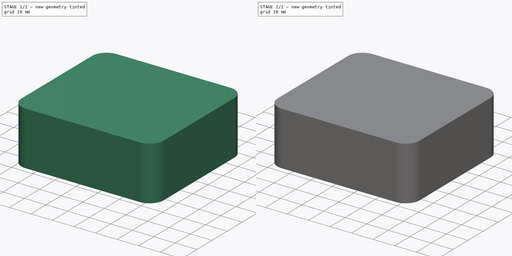
[diagram: build sequence overview — one tinted view per stage of 2, left to right]
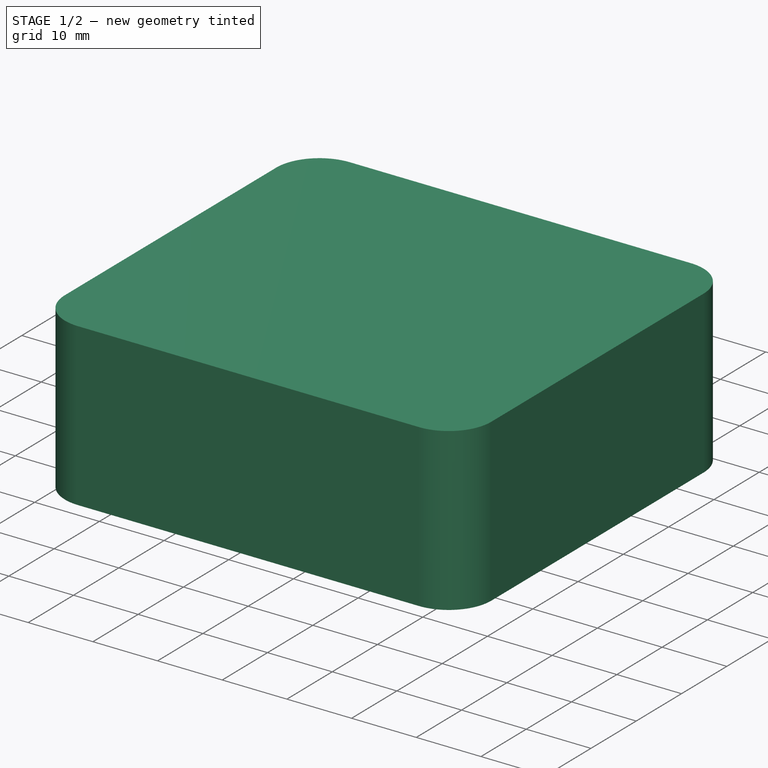
[diagram: stage 1 of 2 — iso view after this stage's code; geometry added in this stage tinted green]
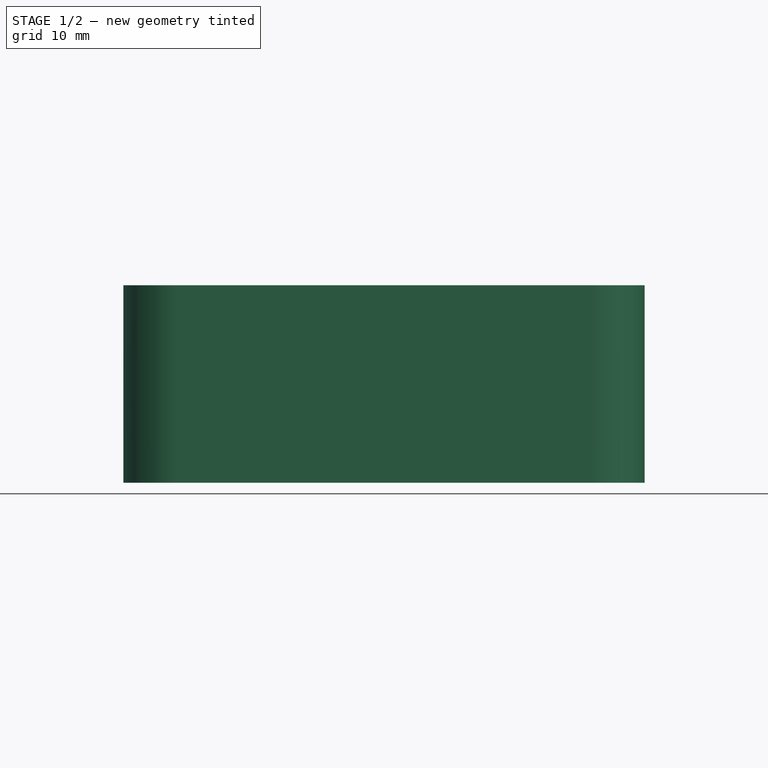
[diagram: stage 1 of 2 — front view after this stage's code; geometry added in this stage tinted green]
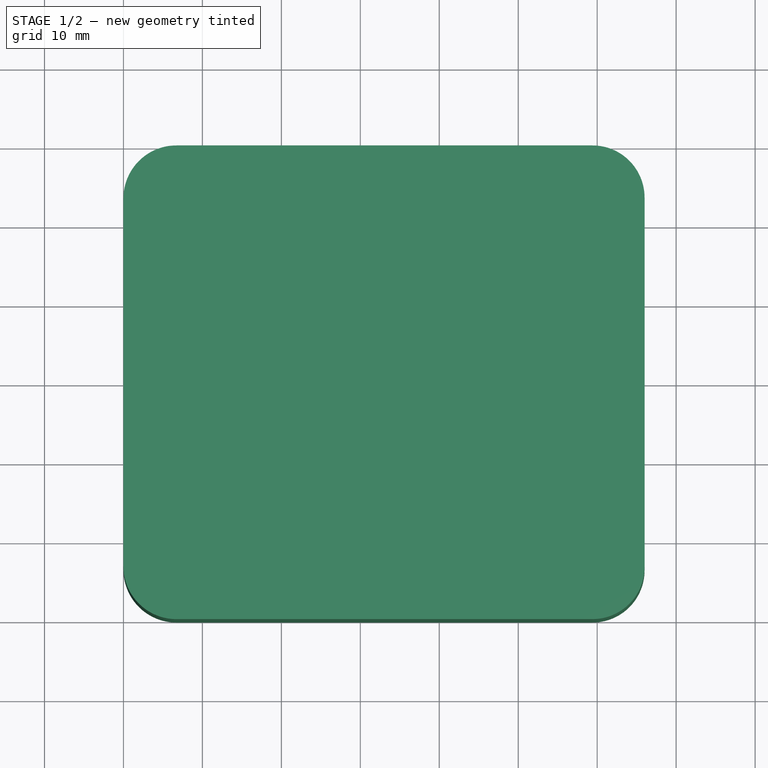
[diagram: stage 1 of 2 — top view after this stage's code; geometry added in this stage tinted green]
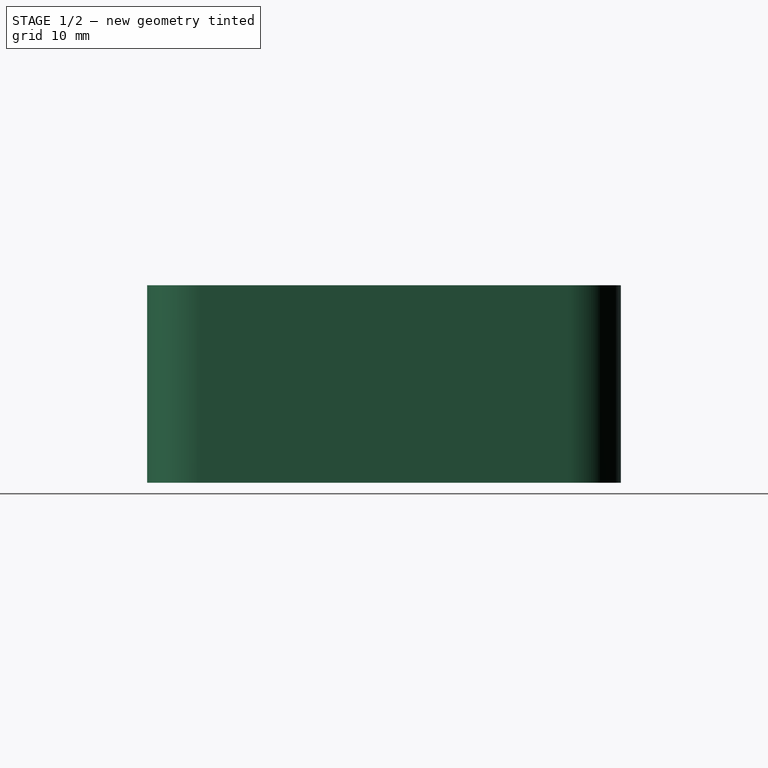
[diagram: stage 1 of 2 — right view after this stage's code; geometry added in this stage tinted green]
FCSTD DOCUMENT  (FreeCAD 0.21R33771 (Git))
Label: Back_unit
License: All rights reserved
LicenseURL: https://en.wikipedia.org/wiki/All_rights_reserved
objects: Sketcher::SketchObject×1, Part::Extrusion×1, Part::Thickness×1
note: 3 computed .brp shape members not serialized (recipe doc carries the construction recipe); baked Part::Feature solids carry a one-line shape summary decoded from their .brp

FEATURE [Sketcher::SketchObject] Sketch
  FullyConstrained = true
  sketch-geometry (8):
    g0: LineSegment StartX=6.7 StartY=0 StartZ=0 EndX=59.4 EndY=0 EndZ=0
    g1: LineSegment StartX=66 StartY=6.6 StartZ=0 EndX=66 EndY=53.4 EndZ=0
    g2: LineSegment StartX=59.4 StartY=60 StartZ=0 EndX=6.7 EndY=60 EndZ=0
    g3: LineSegment StartX=0 StartY=53.3 StartZ=0 EndX=0 EndY=6.7 EndZ=0
    g4: ArcOfCircle CenterX=6.7 CenterY=6.7 CenterZ=0 NormalX=0 NormalY=0 NormalZ=1 AngleXU=0 Radius=6.7 StartAngle=3.14159 EndAngle=4.71239
    g5: ArcOfCircle CenterX=6.7 CenterY=53.3 CenterZ=0 NormalX=0 NormalY=0 NormalZ=1 AngleXU=0 Radius=6.7 StartAngle=1.5708 EndAngle=3.14159
    g6: ArcOfCircle CenterX=59.4 CenterY=53.4 CenterZ=0 NormalX=0 NormalY=0 NormalZ=1 AngleXU=0 Radius=6.6 StartAngle=4.96466e-11 EndAngle=1.5708
    g7: ArcOfCircle CenterX=59.4 CenterY=6.6 CenterZ=0 NormalX=0 NormalY=0 NormalZ=1 AngleXU=0 Radius=6.6 StartAngle=4.71239 EndAngle=6.28319
  constraints (20):
    c: Horizontal(g0)
    c: Horizontal(g2)
    c: Vertical(g1)
    c: Vertical(g3)
    c: Tangent(g0,g4) = -1.5708
    c: Tangent(g3,g4) = -1.5708
    c: Tangent(g2,g5) = -1.5708
    c: Tangent(g3,g5) = -1.5708
    c: Tangent(g1,g6) = -1.5708
    c: Tangent(g2,g6) = -1.5708
    c: Tangent(g0,g7) = -1.5708
    c: Tangent(g1,g7) = -1.5708
    c: Radius(g5) = 6.7
    c: PointOnObject(g3,g-2)
    c: PointOnObject(g0,g-1)
    c: Radius(g4) = 6.7
    c: DistanceX(g3,g1) = 66
    c: DistanceY(g0,g2) = 60
    c: Equal(g6,g7)
    c: Radius(g6) = 6.6
FEATURE [Part::Extrusion] Extrude
  Base = -> Sketch
  Dir = (0,0,1)
  DirMode = 2
  FaceMakerClass = Part::FaceMakerBullseye
  LengthFwd = 25
  LengthRev = 0
  Solid = true
  Symmetric = false
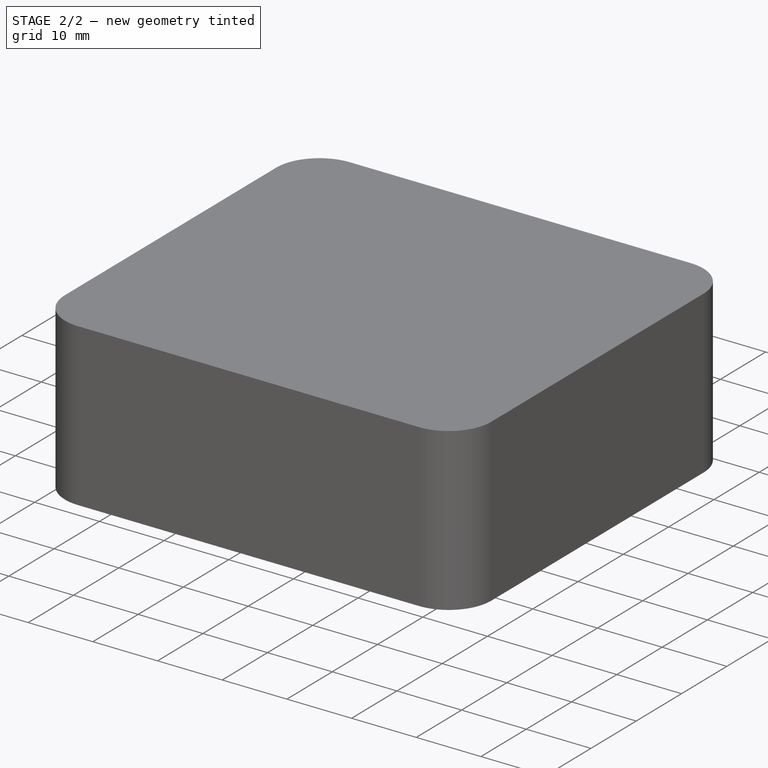
[diagram: stage 2 of 2 — iso view after this stage's code; geometry added in this stage tinted green]
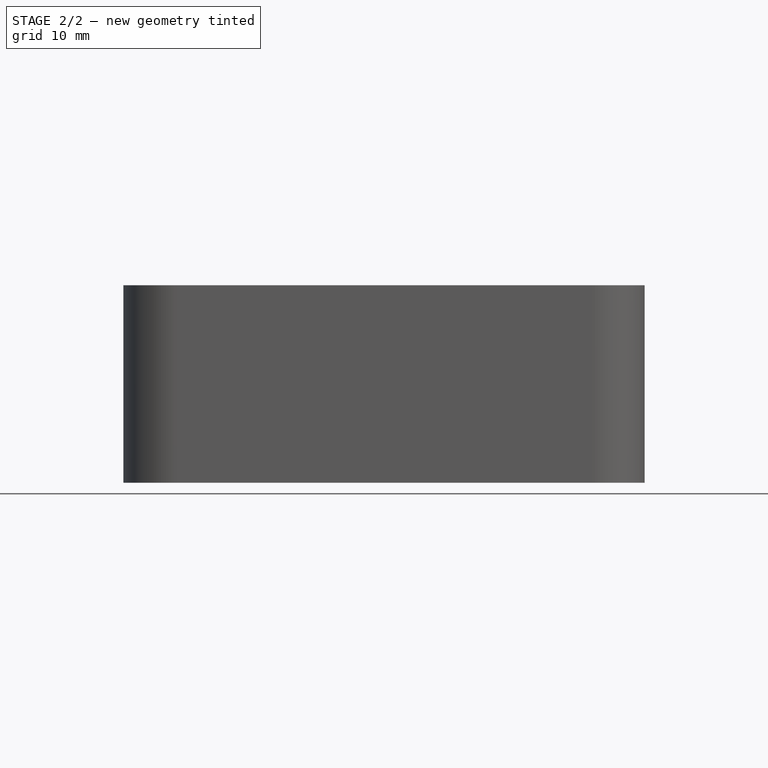
[diagram: stage 2 of 2 — front view after this stage's code; geometry added in this stage tinted green]
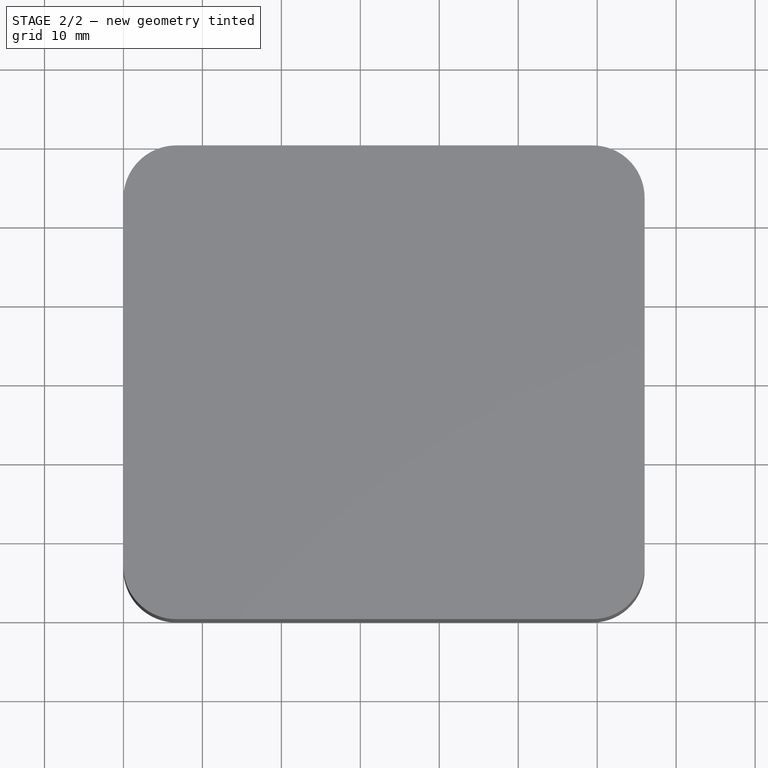
[diagram: stage 2 of 2 — top view after this stage's code; geometry added in this stage tinted green]
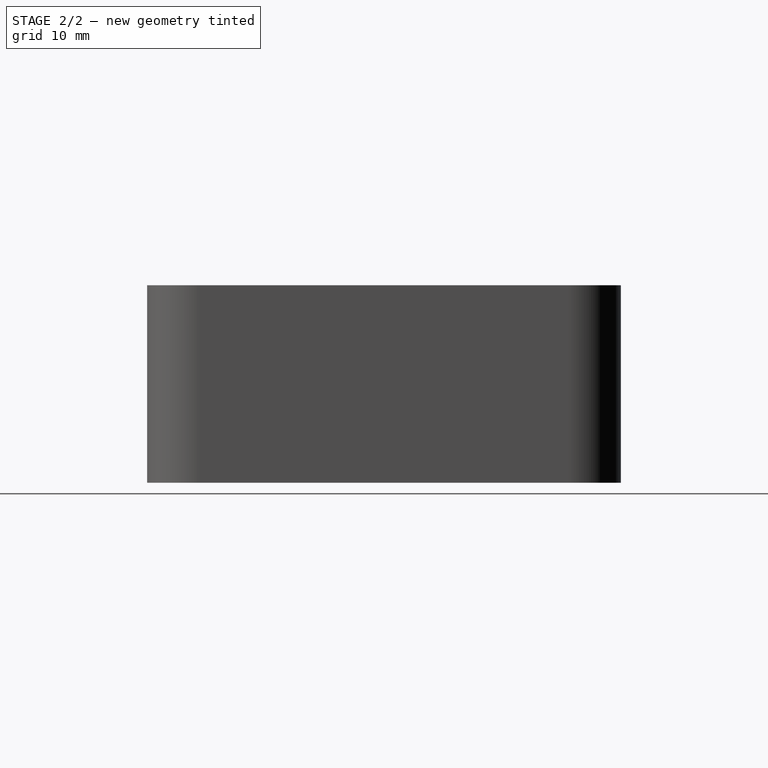
[diagram: stage 2 of 2 — right view after this stage's code; geometry added in this stage tinted green]
FEATURE [Part::Thickness] Thickness  label="Shell"
  Faces = -> Extrude [Face9]
  Intersection = false
  Join = 0
  Mode = 0
  SelfIntersection = false
  Value = -2
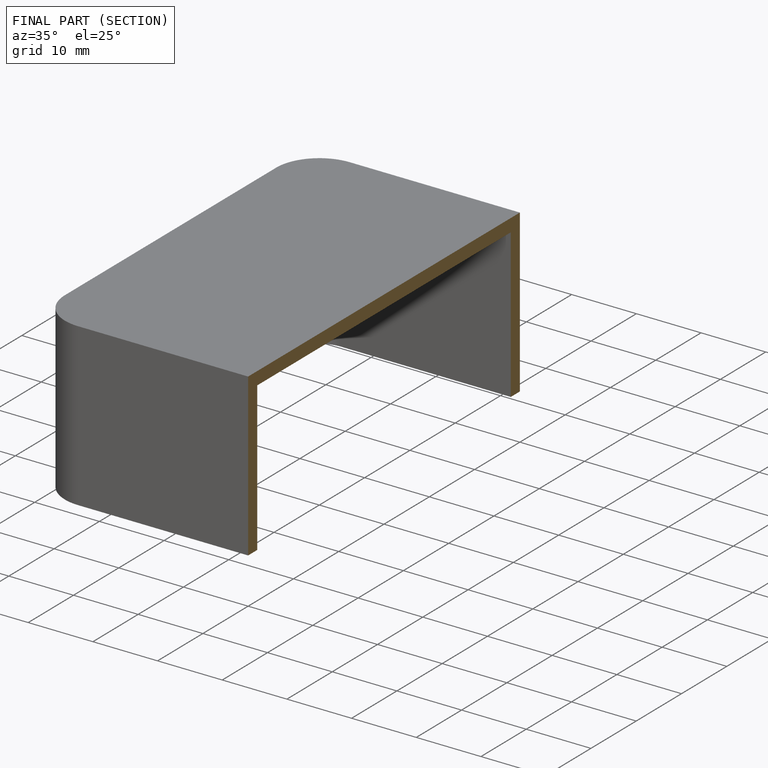
[diagram: finished part — half-section view (interior)]
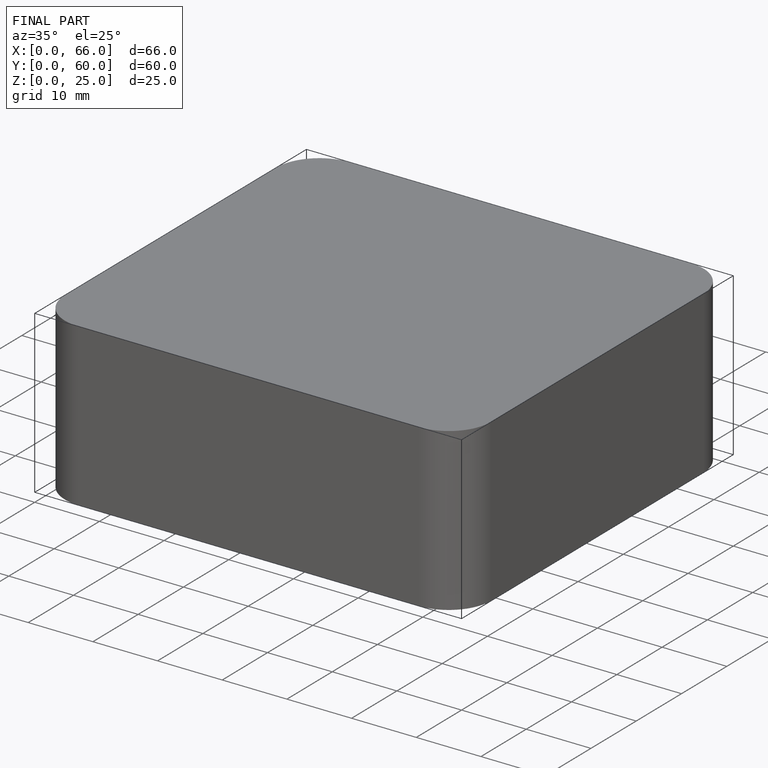
[diagram: finished part — iso view with bounding-box wireframe]
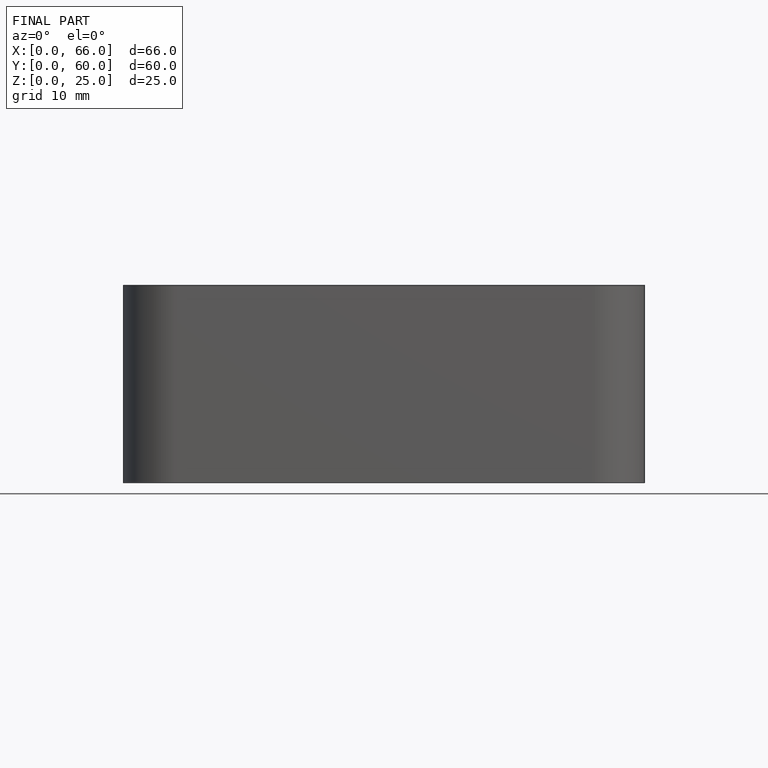
[diagram: finished part — front view with bounding-box wireframe]
